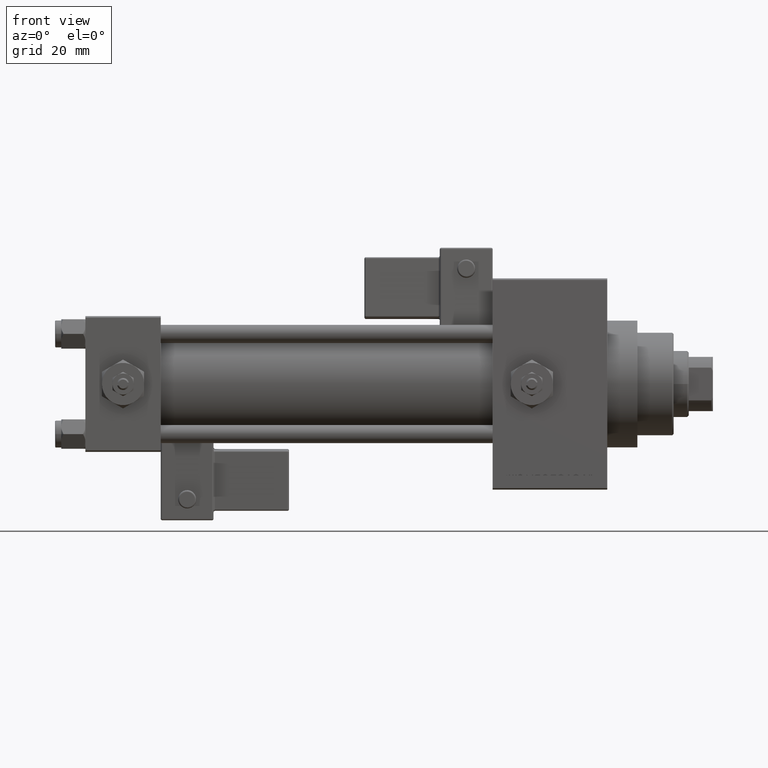
[diagram: clean part render]
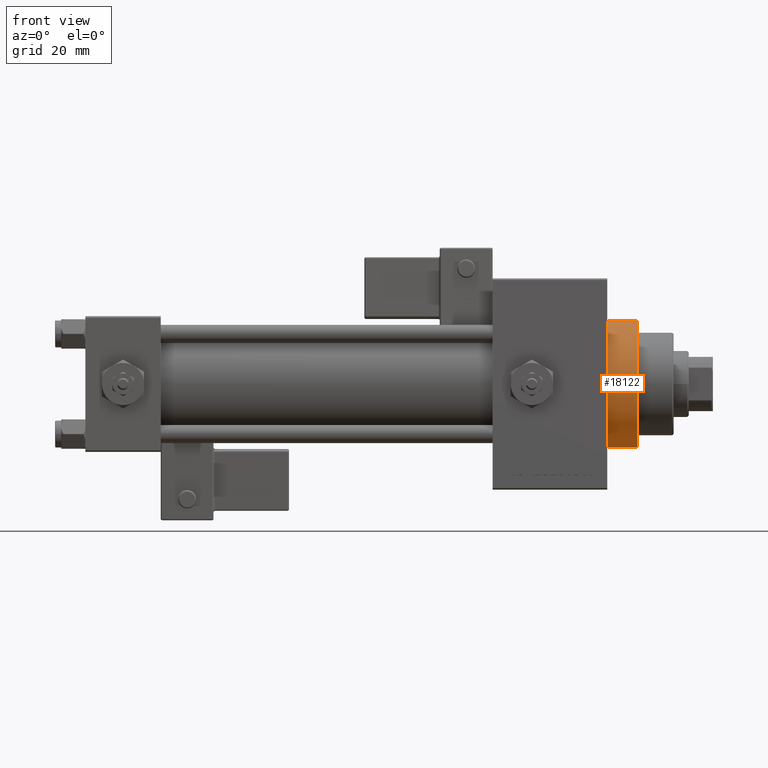
[diagram: same view with one face highlighted and labeled with its STEP entity id]
A machine part, front view. The second image highlights one B-rep face of the part: STEP entity #18122.
In plain terms, the highlighted cylindrical surface (partial cylindrical patch) has radius 21 mm, axis along (-1, -0, -0).
Its self-contained STEP definition (entity closure, byte-faithful):
#197 = FACE_OUTER_BOUND ( 'NONE', #24537, .T. ) ;
#494 = CARTESIAN_POINT ( 'NONE',  ( 173.0000000000000284, 0.000000000000000000, 21.00000000000000000 ) ) ;
#968 = DIRECTION ( 'NONE',  ( 0.000000000000000000, 0.000000000000000000, 1.000000000000000000 ) ) ;
#1693 = CARTESIAN_POINT ( 'NONE',  ( 183.0000000000000284, 0.000000000000000000, 21.00000000000000000 ) ) ;
#2715 = CIRCLE ( 'NONE', #32568, 21.00000000000000000 ) ;
#3009 = CARTESIAN_POINT ( 'NONE',  ( 183.0000000000000284, 0.000000000000000000, 21.00000000000000000 ) ) ;
#3660 = DIRECTION ( 'NONE',  ( 0.000000000000000000, 0.000000000000000000, -1.000000000000000000 ) ) ;
#4867 = CARTESIAN_POINT ( 'NONE',  ( 183.0000000000000284, 0.000000000000000000, 0.000000000000000000 ) ) ;
#7238 = ORIENTED_EDGE ( 'NONE', *, *, #26049, .T. ) ;
#13375 = CIRCLE ( 'NONE', #25789, 21.00000000000000000 ) ;
#15683 = DIRECTION ( 'NONE',  ( 1.000000000000000000, 0.000000000000000000, 0.000000000000000000 ) ) ;
#16681 = AXIS2_PLACEMENT_3D ( 'NONE', #4867, #36558, #968 ) ;
#17352 = VECTOR ( 'NONE', #20666, 1000.000000000000000 ) ;
#18122 = ADVANCED_FACE ( 'NONE', ( #197 ), #24608, .T. ) ;
#18733 = CARTESIAN_POINT ( 'NONE',  ( 173.0000000000000284, 0.000000000000000000, 0.000000000000000000 ) ) ;
#20374 = ORIENTED_EDGE ( 'NONE', *, *, #48825, .F. ) ;
#20666 = DIRECTION ( 'NONE',  ( -1.000000000000000000, -0.000000000000000000, -0.000000000000000000 ) ) ;
#21008 = VERTEX_POINT ( 'NONE', #494 ) ;
#21531 = ORIENTED_EDGE ( 'NONE', *, *, #27080, .F. ) ;
#21673 = VERTEX_POINT ( 'NONE', #44690 ) ;
#22093 = VERTEX_POINT ( 'NONE', #29307 ) ;
#23213 = CARTESIAN_POINT ( 'NONE',  ( 183.0000000000000284, 0.000000000000000000, 0.000000000000000000 ) ) ;
#24537 = EDGE_LOOP ( 'NONE', ( #20374, #21531, #7238, #44020 ) ) ;
#24608 = CYLINDRICAL_SURFACE ( 'NONE', #16681, 21.00000000000000000 ) ;
#25789 = AXIS2_PLACEMENT_3D ( 'NONE', #23213, #15683, #31520 ) ;
#26049 = EDGE_CURVE ( 'NONE', #44271, #21008, #37286, .T. ) ;
#27080 = EDGE_CURVE ( 'NONE', #44271, #21673, #13375, .T. ) ;
#28453 = CARTESIAN_POINT ( 'NONE',  ( 183.0000000000000284, 2.571758278209441661E-15, -21.00000000000000000 ) ) ;
#29307 = CARTESIAN_POINT ( 'NONE',  ( 173.0000000000000284, 2.571758278209441661E-15, -21.00000000000000000 ) ) ;
#30718 = VECTOR ( 'NONE', #44555, 1000.000000000000000 ) ;
#31071 = EDGE_CURVE ( 'NONE', #21008, #22093, #2715, .T. ) ;
#31520 = DIRECTION ( 'NONE',  ( 0.000000000000000000, 0.000000000000000000, -1.000000000000000000 ) ) ;
#32568 = AXIS2_PLACEMENT_3D ( 'NONE', #18733, #34589, #3660 ) ;
#34589 = DIRECTION ( 'NONE',  ( 1.000000000000000000, 0.000000000000000000, 0.000000000000000000 ) ) ;
#36558 = DIRECTION ( 'NONE',  ( -1.000000000000000000, -0.000000000000000000, -0.000000000000000000 ) ) ;
#36777 = LINE ( 'NONE', #28453, #17352 ) ;
#37286 = LINE ( 'NONE', #1693, #30718 ) ;
#44020 = ORIENTED_EDGE ( 'NONE', *, *, #31071, .T. ) ;
#44271 = VERTEX_POINT ( 'NONE', #3009 ) ;
#44555 = DIRECTION ( 'NONE',  ( -1.000000000000000000, -0.000000000000000000, -0.000000000000000000 ) ) ;
#44690 = CARTESIAN_POINT ( 'NONE',  ( 183.0000000000000284, 2.571758278209441661E-15, -21.00000000000000000 ) ) ;
#48825 = EDGE_CURVE ( 'NONE', #21673, #22093, #36777, .T. ) ;